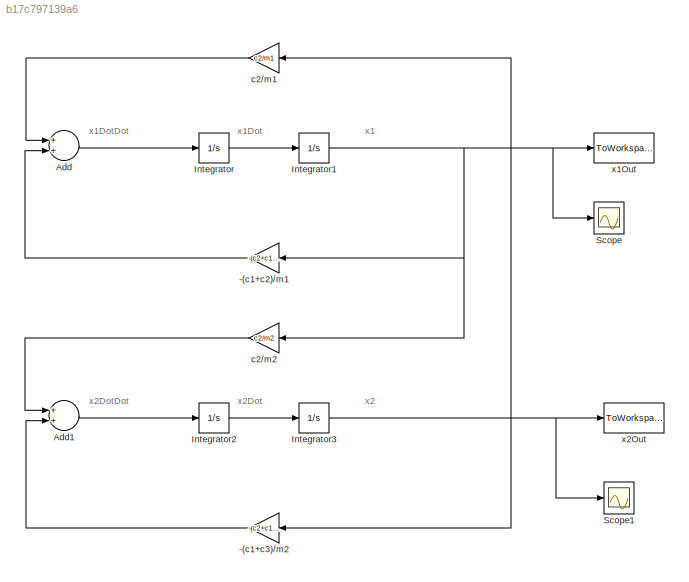
MODEL slx_b17c797139a6
KIND model
CONFIG AbsTol = auto
CONFIG EnableMultiTasking = off
CONFIG FixedStep = h
CONFIG MaxStep = auto
CONFIG MinStep = auto
CONFIG RelTol = 1e-3
CONFIG SampleTimeConstraint = Unconstrained
CONFIG Solver = ode2
CONFIG SolverName = ode2
CONFIG StartTime = 0.0
CONFIG StopTime = lastTime
BLOCK [Gain] -(c1+c2)//m1
  Gain = -(c2+c1)/m1
  OutDataTypeStr = Inherit: Inherit via internal rule
  ParamDataTypeStr = Inherit: Inherit via internal rule
  SaturateOnIntegerOverflow = off
BLOCK [Gain] -(c1+c3)//m2
  Gain = -(c2+c1)/m1
  OutDataTypeStr = Inherit: Inherit via internal rule
  ParamDataTypeStr = Inherit: Inherit via internal rule
  SaturateOnIntegerOverflow = off
BLOCK [Sum] Add
  InputSameDT = off
  OutDataTypeStr = Inherit: Inherit via internal rule
  Ports = [2, 1]
  SaturateOnIntegerOverflow = off
BLOCK [Sum] Add1
  InputSameDT = off
  OutDataTypeStr = Inherit: Inherit via internal rule
  Ports = [2, 1]
  SaturateOnIntegerOverflow = off
BLOCK [Integrator] Integrator
  InitialCondition = xDot_10
  Ports = [1, 1]
BLOCK [Integrator] Integrator1
  InitialCondition = x_10
  Ports = [1, 1]
BLOCK [Integrator] Integrator2
  InitialCondition = xDot_20
  Ports = [1, 1]
BLOCK [Integrator] Integrator3
  InitialCondition = x_20
  Ports = [1, 1]
BLOCK [Scope] Scope
  NumInputPorts = 1
  Ports = [1]
  ScopeSpecificationString = Simulink.scopes.TimeScopeBlockCfg('CurrentConfiguration', extmgr.ConfigurationSet(extmgr.Configuration('Core','General UI',true),extmgr.Configuration('Core','Source UI',true),extmgr.Configuration('Sources','WiredSimulink',true),extmgr.Configuration('Visuals','Time Domain',true,'SerializedDisplays',{struct('MinYLimReal','-0.01246','MaxYLimReal','0.0125','YLabelReal','','MinYLimMag','0.00000','MaxYL...<+1356ch>
BLOCK [Scope] Scope1
  NumInputPorts = 1
  Ports = [1]
  ScopeSpecificationString = Simulink.scopes.TimeScopeBlockCfg('CurrentConfiguration', extmgr.ConfigurationSet(extmgr.Configuration('Core','General UI',true),extmgr.Configuration('Core','Source UI',true),extmgr.Configuration('Sources','WiredSimulink',true,'DataLoggingVariableName','ScopeData1'),extmgr.Configuration('Visuals','Time Domain',true,'SerializedDisplays',{struct('MinYLimReal','-0.01246','MaxYLimReal','0.0125','YLabe...<+1395ch>
BLOCK [Gain] c2//m1
  Gain = c2/m1
  OutDataTypeStr = Inherit: Inherit via internal rule
  ParamDataTypeStr = Inherit: Inherit via internal rule
  SaturateOnIntegerOverflow = off
BLOCK [Gain] c2//m2
  Gain = c2/m2
  OutDataTypeStr = Inherit: Inherit via internal rule
  ParamDataTypeStr = Inherit: Inherit via internal rule
  SaturateOnIntegerOverflow = off
BLOCK [ToWorkspace] x1Out
  FixptAsFi = on
  MaxDataPoints = inf
  Ports = [1]
  SampleTime = -1
  Save2DSignal = 3-D array (concatenate along third dimension)
  VariableName = x1Simulink
BLOCK [ToWorkspace] x2Out
  FixptAsFi = on
  MaxDataPoints = inf
  Ports = [1]
  SampleTime = -1
  Save2DSignal = 3-D array (concatenate along third dimension)
  VariableName = x2Simulink
ANNOTATION (root): x1
ANNOTATION (root): x1Dot
ANNOTATION (root): x1DotDot
ANNOTATION (root): x2
ANNOTATION (root): x2Dot
ANNOTATION (root): x2DotDot
LINE -(c1+c2)//m1:1 -> Add:2
LINE -(c1+c3)//m2:1 -> Add1:2
LINE Add1:1 -> Integrator2:1
LINE Add:1 -> Integrator:1
NET Integrator1:1 -> -(c1+c2)//m1:1, Scope:1, c2//m2:1, x1Out:1
LINE Integrator2:1 -> Integrator3:1
NET Integrator3:1 -> -(c1+c3)//m2:1, Scope1:1, c2//m1:1, x2Out:1
LINE Integrator:1 -> Integrator1:1
LINE c2//m1:1 -> Add:1
LINE c2//m2:1 -> Add1:1
note: NET lines group one-source signal fan-out (src -> all destinations, sorted); 1:1 wires keep LINE
